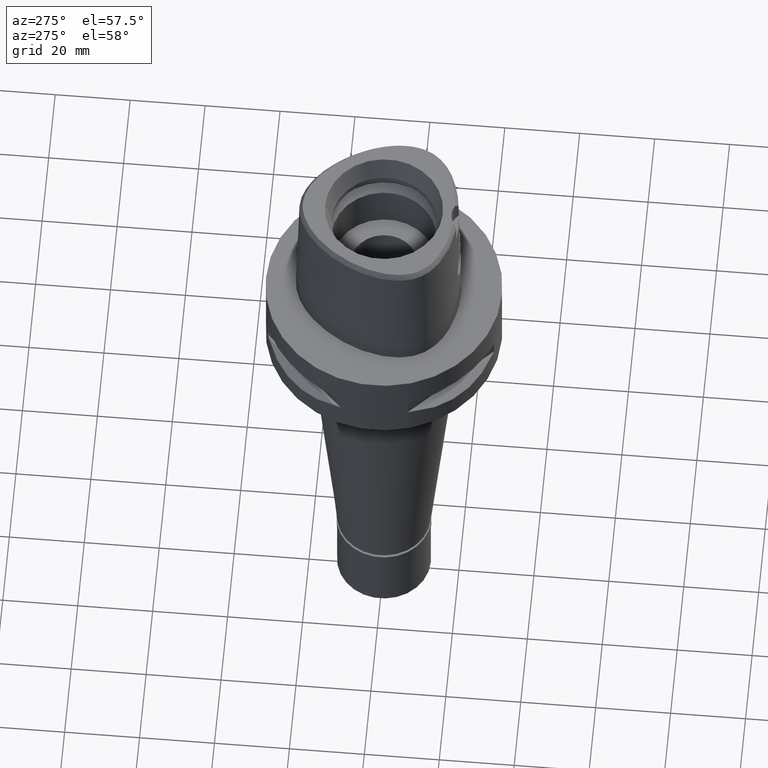
[diagram: clean part render]
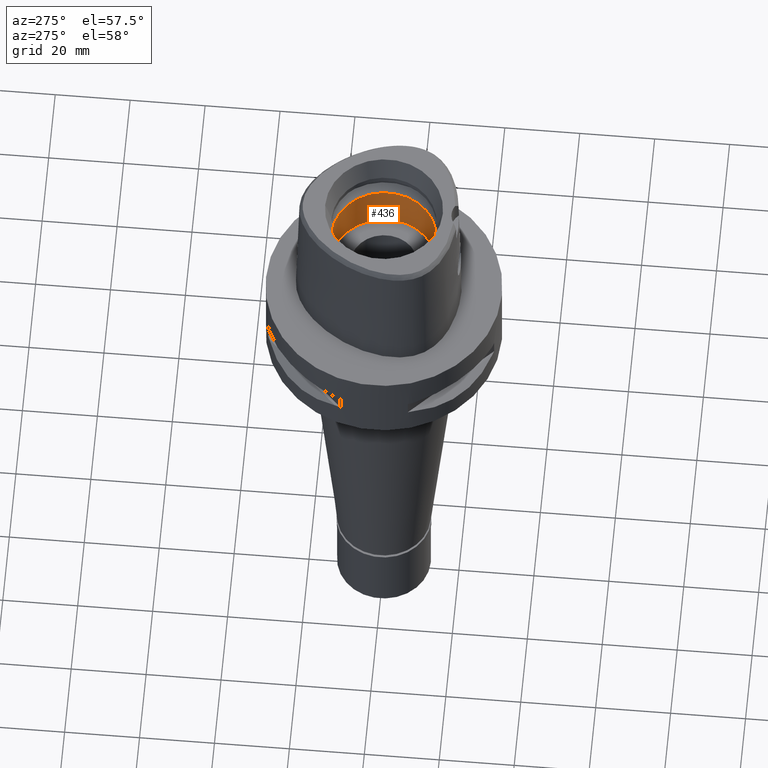
[diagram: same view with one face highlighted and labeled with its STEP entity id]
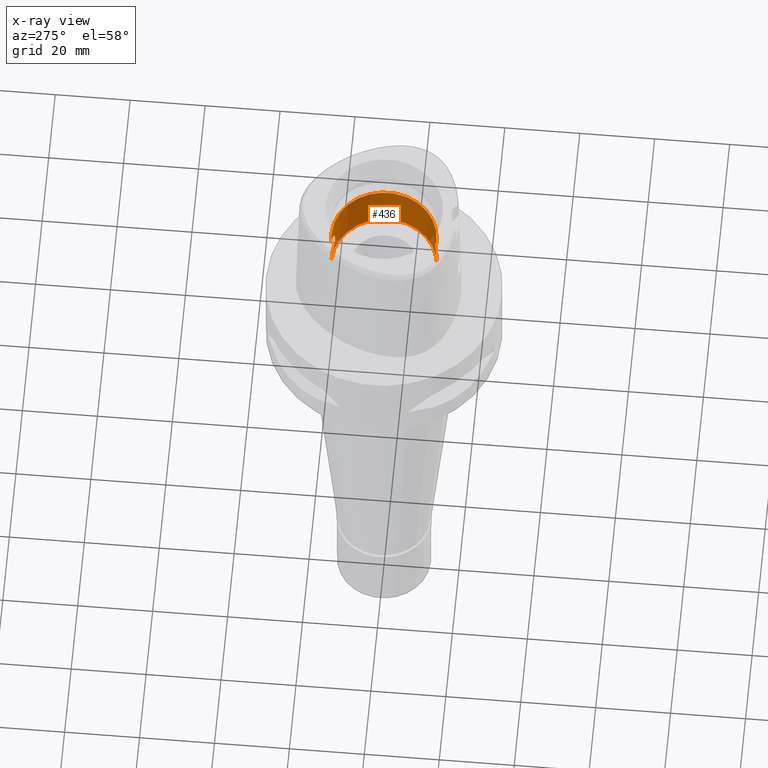
[diagram: x-ray of the same camera — body ghosted, the highlighted face saturated]
A machine part, auxiliary view. The second image highlights one B-rep face of the part: STEP entity #436.
The next image is the same camera in x-ray: the body ghosted, the highlighted face saturated — about 4% of this face is hidden behind the body in this view.
In plain terms, the highlighted cylindrical surface (partial cylindrical patch) has radius 14 mm, axis along (0, 0, -1).
Its self-contained STEP definition (entity closure, byte-faithful):
#20 = CARTESIAN_POINT ( 'NONE',  ( 2.322867096538177023, 13.80594945631067816, 18.81782271138472495 ) ) ;
#22 = CARTESIAN_POINT ( 'NONE',  ( 4.050104837866462582, 13.40137507185015586, 15.25494482426987020 ) ) ;
#49 = CARTESIAN_POINT ( 'NONE',  ( 2.619673022588239863, 13.75271276002085052, 12.41039726434475376 ) ) ;
#73 = CARTESIAN_POINT ( 'NONE',  ( 3.737887346439032754, -13.49190726130635909, 17.05908841074957039 ) ) ;
#75 = CARTESIAN_POINT ( 'NONE',  ( 3.092390699437096213, 13.65467114194158071, 12.88130927557538463 ) ) ;
#95 = CARTESIAN_POINT ( 'NONE',  ( 2.230287417959641694, -13.82119696819911958, 18.88058087293834930 ) ) ;
#98 = CARTESIAN_POINT ( 'NONE',  ( 3.760688074396015157, 13.48555087701915056, 17.00326317844047708 ) ) ;
#130 = B_SPLINE_CURVE_WITH_KNOTS ( 'NONE', 3,
 ( #1639, #3958, #1234, #825, #1995, #1260, #4707, #4759, #3175, #2770, #2793, #1539, #459, #1208, #849, #3932, #4349, #2404, #5067, #1970, #751, #1562, #3555, #3122, #1610, #49, #1585, #2720, #4736, #3584, #2020, #4680, #75, #3479, #4252, #2304, #3860, #356, #2745, #774, #1184, #1920, #3099, #4660, #1160, #4276, #2330, #3887, #382, #4299, #800, #2354, #3911, #410, #3531, #22, #1662, #2430, #489, #2819, #3986, #2047, #4858, #3609, #98, #4374, #876, #3226, #4927, #4157, #2303, #3369, #3859, #1042, #5017, #656, #2211, #1512, #3771, #4540, #268, #3886, #2600, #2182, #355, #3070, #1889, #3744, #4679, #1422, #4251, #20, #4659, #409, #1584, #3452, #750, #4298, #1919, #1968, #2329, #4628, #626, #3096, #1131, #2696, #1183, #1945, #243 ),
 .UNSPECIFIED., .F., .F.,
 ( 4, 2, 2, 1, 1, 2, 2, 2, 2, 1, 1, 1, 2, 2, 2, 2, 1, 2, 2, 2, 2, 1, 1, 1, 2, 2, 2, 2, 1, 1, 2, 2, 2, 2, 2, 2, 1, 1, 1, 2, 2, 2, 2, 1, 1, 1, 2, 2, 2, 2, 2, 2, 2, 2, 1, 1, 1, 2, 2, 2, 2, 1, 2, 2, 4 ),
 ( 0.0000000000000000000, 0.06250000000002796374, 0.09375000000004200806, 0.1093750000000490857, 0.1171875000000525829, 0.1210937500000543177, 0.1250000000000560385, 0.1562500000000701383, 0.1718750000000773548, 0.1796875000000809630, 0.1835937500000826839, 0.1855468750000834610, 0.1865234375000837386, 0.1875000000000840161, 0.2187500000000996425, 0.2343750000001074418, 0.2421875000001113554, 0.2460937500001133815, 0.2500000000001154077, 0.2812500000001315059, 0.2968750000001393885, 0.3046875000001431633, 0.3085937500001449951, 0.3105468750001457168, 0.3115234375001458278, 0.3125000000001459388, 0.3437500000001469380, 0.3593750000001472156, 0.3671875000001475486, 0.3710937500001474931, 0.3730468750001477152, 0.3750000000001478817, 0.4375000000001576517, 0.5000000000001674216, 0.5625000000001771916, 0.5937500000001820766, 0.6093750000001841860, 0.6171875000001851852, 0.6210937500001852962, 0.6230468750001854072, 0.6250000000001855183, 0.6562500000001864064, 0.6718750000001868505, 0.6796875000001872946, 0.6835937500001872946, 0.6855468750001872946, 0.6865234375001869616, 0.6875000000001866285, 0.7187500000001761924, 0.7343750000001709743, 0.7421875000001680878, 0.7500000000001652012, 0.7812500000001552092, 0.7968750000001503242, 0.8046875000001475486, 0.8085937500001462164, 0.8105468750001455502, 0.8115234375001447731, 0.8125000000001441069, 0.8437500000001201261, 0.8593750000001081357, 0.8671875000001020295, 0.8710937500000988098, 0.8750000000000954792, 1.000000000000000000 ),
 .UNSPECIFIED. ) ;
#149 = CARTESIAN_POINT ( 'NONE',  ( 3.681917144197214498, -13.50730066061284873, 17.18730806969945135 ) ) ;
#167 = CARTESIAN_POINT ( 'NONE',  ( 0.0000000000000000000, 0.0000000000000000000, 24.19999999999999929 ) ) ;
#172 = CARTESIAN_POINT ( 'NONE',  ( 3.750535583141483720, -13.48837563529048467, 13.97158931176262264 ) ) ;
#200 = CARTESIAN_POINT ( 'NONE',  ( 3.381275431635352380, -13.58552310374970595, 13.27076317276037720 ) ) ;
#227 = CARTESIAN_POINT ( 'NONE',  ( 1.773869829220215522, -13.88717198021215360, 11.85856959828370982 ) ) ;
#236 = DIRECTION ( 'NONE',  ( 0.0000000000000000000, 0.0000000000000000000, 1.000000000000000000 ) ) ;
#243 = CARTESIAN_POINT ( 'NONE',  ( 0.0000000000000000000, 14.00000000000000000, 19.55000000000000071 ) ) ;
#256 = EDGE_CURVE ( 'NONE', #3387, #3117, #3223, .T. ) ;
#268 = CARTESIAN_POINT ( 'NONE',  ( 3.144628171822032137, 13.64250443858482598, 18.05308396219102818 ) ) ;
#291 = CARTESIAN_POINT ( 'NONE',  ( 0.0000000000000000000, 14.00000000000000000, 11.00000000000000000 ) ) ;
#331 = CARTESIAN_POINT ( 'NONE',  ( 0.0000000000000000000, -14.00000000000000000, 24.19999999999999929 ) ) ;
#355 = CARTESIAN_POINT ( 'NONE',  ( 2.935444872016017115, 13.68884853182273176, 18.29060286049227102 ) ) ;
#356 = CARTESIAN_POINT ( 'NONE',  ( 3.344202712455531135, 13.59470072211582625, 13.21548413973970248 ) ) ;
#381 = CARTESIAN_POINT ( 'NONE',  ( 0.0000000000000000000, -14.00000000000000000, 11.00000000000000000 ) ) ;
#382 = CARTESIAN_POINT ( 'NONE',  ( 3.722985834057065180, 13.49603060517735820, 13.90554383507138780 ) ) ;
#409 = CARTESIAN_POINT ( 'NONE',  ( 2.268763823219308584, 13.81494635577724672, 18.85488801677172432 ) ) ;
#410 = CARTESIAN_POINT ( 'NONE',  ( 3.927462924607744377, 13.43840419036686562, 14.47652859058932151 ) ) ;
#429 = CARTESIAN_POINT ( 'NONE',  ( 2.705656092646467226, -13.73601936352752340, 18.51386516677751359 ) ) ;
#436 = ADVANCED_FACE ( 'NONE', ( #4448 ), #1883, .F. ) ;
#457 = CARTESIAN_POINT ( 'NONE',  ( 2.564513564677239454, -13.76306012765056863, 18.63532267610442972 ) ) ;
#459 = CARTESIAN_POINT ( 'NONE',  ( 1.758911448705636316, 13.88947925417483908, 11.84948192330543471 ) ) ;
#486 = CARTESIAN_POINT ( 'NONE',  ( 0.5031329879058820120, -13.99299628181930721, 19.52713608391256628 ) ) ;
#489 = CARTESIAN_POINT ( 'NONE',  ( 3.953315574837680035, 13.43069190713384131, 16.38937041762279989 ) ) ;
#511 = CARTESIAN_POINT ( 'NONE',  ( 2.206604282614726298, -13.82500263684417341, 18.89610616580772273 ) ) ;
#512 = CARTESIAN_POINT ( 'NONE',  ( 0.0000000000000000000, 14.00000000000000000, 11.00000000000000000 ) ) ;
#538 = CARTESIAN_POINT ( 'NONE',  ( 3.253150413770078409, -13.61695205281290200, 17.91296083935737826 ) ) ;
#563 = CARTESIAN_POINT ( 'NONE',  ( 3.020680690464510931, -13.67035562325839493, 12.80193796149488428 ) ) ;
#589 = CARTESIAN_POINT ( 'NONE',  ( 3.922079205947585745, -13.43983130147406690, 14.48117699423214688 ) ) ;
#613 = CARTESIAN_POINT ( 'NONE',  ( 3.864698997106321698, -13.45627842727308376, 14.28708901172944046 ) ) ;
#626 = CARTESIAN_POINT ( 'NONE',  ( 1.643112089915769847, 13.90317243032500372, 19.20194634167605940 ) ) ;
#656 = CARTESIAN_POINT ( 'NONE',  ( 3.386213530933807281, 13.58429339872313513, 17.72172867397880580 ) ) ;
#669 = CARTESIAN_POINT ( 'NONE',  ( 2.632435958151018163, -13.75053331397524126, 12.41927859746139440 ) ) ;
#724 = CARTESIAN_POINT ( 'NONE',  ( 0.0000000000000000000, -14.00000000000000000, 11.00000000000000000 ) ) ;
#726 = CARTESIAN_POINT ( 'NONE',  ( 0.0000000000000000000, 14.00000000000000000, 19.55000000000000071 ) ) ;
#750 = CARTESIAN_POINT ( 'NONE',  ( 2.255317399662373212, 13.81714987027322117, 18.86393579140843002 ) ) ;
#751 = CARTESIAN_POINT ( 'NONE',  ( 2.225288147335050759, 13.82200341650345088, 12.11612460656476919 ) ) ;
#773 = LINE ( 'NONE', #381, #3350 ) ;
#774 = CARTESIAN_POINT ( 'NONE',  ( 3.359020109953346100, 13.59103542220014127, 13.23737089544341572 ) ) ;
#800 = CARTESIAN_POINT ( 'NONE',  ( 3.737862436380069209, 13.49191471466330761, 13.94085186771693863 ) ) ;
#817 = ORIENTED_EDGE ( 'NONE', *, *, #2058, .T. ) ;
#823 = CARTESIAN_POINT ( 'NONE',  ( 3.723011875672144644, -13.49602288719113297, 17.09439534801112970 ) ) ;
#825 = CARTESIAN_POINT ( 'NONE',  ( 0.8886602406399118914, 13.97198482965736765, 11.54653314444634127 ) ) ;
#844 = CARTESIAN_POINT ( 'NONE',  ( 2.180430719042663945, -13.82916524275329806, 18.91303019141079744 ) ) ;
#849 = CARTESIAN_POINT ( 'NONE',  ( 1.994196793542153179, 13.85732250604735150, 11.97431708283842333 ) ) ;
#873 = CARTESIAN_POINT ( 'NONE',  ( 3.740374405820741543, -13.49121797331917527, 17.05311813184873415 ) ) ;
#876 = CARTESIAN_POINT ( 'NONE',  ( 3.750524584720605237, 13.48837842770623574, 17.02843767659302543 ) ) ;
#902 = CARTESIAN_POINT ( 'NONE',  ( 1.935032715135688530, -13.86568800702951521, 19.05844582712813562 ) ) ;
#925 = CARTESIAN_POINT ( 'NONE',  ( 1.994209348676432958, -13.85732070570753471, 19.02567586479972661 ) ) ;
#975 = ORIENTED_EDGE ( 'NONE', *, *, #3844, .F. ) ;
#981 = CARTESIAN_POINT ( 'NONE',  ( 3.953314660153793181, -13.43069195178042641, 14.61062672908327542 ) ) ;
#1003 = CARTESIAN_POINT ( 'NONE',  ( 2.425356293155605414, -13.78827839657718890, 12.25602180728359158 ) ) ;
#1030 = CARTESIAN_POINT ( 'NONE',  ( 1.600078814865037113, -13.90814512833036964, 11.77945038585449922 ) ) ;
#1042 = CARTESIAN_POINT ( 'NONE',  ( 3.410721872006920119, 13.57817107780544674, 17.68404181477652770 ) ) ;
#1054 = CARTESIAN_POINT ( 'NONE',  ( 2.286401869744580484, -13.81203602590156621, 12.15707754361575255 ) ) ;
#1076 = DIRECTION ( 'NONE',  ( 0.0000000000000000000, -1.000000000000000000, 0.0000000000000000000 ) ) ;
#1106 = LINE ( 'NONE', #726, #4403 ) ;
#1131 = CARTESIAN_POINT ( 'NONE',  ( 1.571457089749292102, 13.91140721976953110, 19.23272879698367532 ) ) ;
#1136 = CARTESIAN_POINT ( 'NONE',  ( 1.643402327022561948, -13.90359116574125053, 19.20357680876592710 ) ) ;
#1160 = CARTESIAN_POINT ( 'NONE',  ( 3.612092316939220282, 13.52616139821540564, 13.66702611669179213 ) ) ;
#1183 = CARTESIAN_POINT ( 'NONE',  ( 1.029184106435327983, 13.97152837429127992, 19.45627297034519998 ) ) ;
#1184 = CARTESIAN_POINT ( 'NONE',  ( 3.361880068192555804, 13.59032751574506648, 13.24162249148927017 ) ) ;
#1208 = CARTESIAN_POINT ( 'NONE',  ( 1.935022422310702206, 13.86568947269442020, 11.94154862990651722 ) ) ;
#1232 = CARTESIAN_POINT ( 'NONE',  ( 1.017639181789193437, -13.96323047955135799, 19.42236212087125935 ) ) ;
#1234 = CARTESIAN_POINT ( 'NONE',  ( 0.5031375785590220806, 13.99299620741434325, 11.47286437004364679 ) ) ;
#1256 = CARTESIAN_POINT ( 'NONE',  ( 3.300146341830308749, -13.60553517926693168, 17.84781835524496785 ) ) ;
#1260 = CARTESIAN_POINT ( 'NONE',  ( 1.210739730851152052, 13.94747155560756191, 11.63462642380244993 ) ) ;
#1282 = CARTESIAN_POINT ( 'NONE',  ( 2.824278146734877204, -13.71216806335186611, 18.40282419414445059 ) ) ;
#1309 = CARTESIAN_POINT ( 'NONE',  ( 3.641267411179716973, -13.51833533351320860, 17.27419309983596563 ) ) ;
#1359 = CARTESIAN_POINT ( 'NONE',  ( 3.649300474006761608, -13.51628050930860425, 13.73856294209829443 ) ) ;
#1386 = ORIENTED_EDGE ( 'NONE', *, *, #3999, .T. ) ;
#1387 = CARTESIAN_POINT ( 'NONE',  ( 3.770305607771647693, -13.48287202863806478, 14.02087226161732580 ) ) ;
#1410 = CARTESIAN_POINT ( 'NONE',  ( 2.268773195248865004, -13.81494468101088557, 12.14511832100865263 ) ) ;
#1422 = CARTESIAN_POINT ( 'NONE',  ( 2.425345328720491356, 13.78828047725936656, 18.74398637552772584 ) ) ;
#1455 = DIRECTION ( 'NONE',  ( 0.0000000000000000000, 0.0000000000000000000, -1.000000000000000000 ) ) ;
#1512 = CARTESIAN_POINT ( 'NONE',  ( 3.377713256201304581, 13.58640893255201476, 17.73462749918550330 ) ) ;
#1539 = CARTESIAN_POINT ( 'NONE',  ( 1.643405570641728985, 13.90359095054735050, 11.79642487334085565 ) ) ;
#1562 = CARTESIAN_POINT ( 'NONE',  ( 2.230267356657809508, 13.82120012601140502, 12.11940589182981221 ) ) ;
#1584 = CARTESIAN_POINT ( 'NONE',  ( 2.261340657284464317, 13.81616386825135123, 18.85988797632192870 ) ) ;
#1585 = CARTESIAN_POINT ( 'NONE',  ( 2.705631081591456599, 13.73602433008912982, 12.48611241040952713 ) ) ;
#1606 = CARTESIAN_POINT ( 'NONE',  ( 1.499090398657561440, -13.91942988264788639, 19.26238249073475473 ) ) ;
#1610 = CARTESIAN_POINT ( 'NONE',  ( 2.564495781464740443, 13.76306347787880036, 12.36466282403251604 ) ) ;
#1637 = CARTESIAN_POINT ( 'NONE',  ( 2.987578035406218468, -13.67819521537284366, 18.24080360137144297 ) ) ;
#1639 = CARTESIAN_POINT ( 'NONE',  ( 0.0000000000000000000, 14.00000000000000000, 11.44999999999999929 ) ) ;
#1658 = CARTESIAN_POINT ( 'NONE',  ( 2.794219043447354611, -13.71831254960298097, 18.43176999259334181 ) ) ;
#1662 = CARTESIAN_POINT ( 'NONE',  ( 4.049894426080578924, 13.40142315477315194, 15.74850829857959944 ) ) ;
#1686 = CARTESIAN_POINT ( 'NONE',  ( 2.838009928929325021, -13.70933862723026486, 18.38942009771758990 ) ) ;
#1711 = CARTESIAN_POINT ( 'NONE',  ( 0.0000000000000000000, -14.00000000000000000, 11.44999999999999929 ) ) ;
#1733 = CARTESIAN_POINT ( 'NONE',  ( 1.832691376668475369, -13.87954557477466722, 11.88776574650866991 ) ) ;
#1762 = CARTESIAN_POINT ( 'NONE',  ( 3.377736576013190994, -13.58640317541479092, 13.26540774977146775 ) ) ;
#1789 = CARTESIAN_POINT ( 'NONE',  ( 2.256430671639759300, -13.81696743697228946, 12.13681261213153029 ) ) ;
#1883 = CYLINDRICAL_SURFACE ( 'NONE', #4307, 14.00000000000000000 ) ;
#1889 = CARTESIAN_POINT ( 'NONE',  ( 2.749412119689650158, 13.72794699191206114, 18.47891641111060324 ) ) ;
#1919 = CARTESIAN_POINT ( 'NONE',  ( 2.010501717871479688, 13.85534156540951223, 19.01828921525475735 ) ) ;
#1920 = CARTESIAN_POINT ( 'NONE',  ( 3.362135645922113447, 13.59026426608047622, 13.24199978629571994 ) ) ;
#1945 = CARTESIAN_POINT ( 'NONE',  ( 0.4996109249560286014, 13.99999999999999645, 19.54999999999999716 ) ) ;
#1954 = VERTEX_POINT ( 'NONE', #3069 ) ;
#1968 = CARTESIAN_POINT ( 'NONE',  ( 1.832682128999251647, 13.87954668814696291, 19.11223895305699472 ) ) ;
#1970 = CARTESIAN_POINT ( 'NONE',  ( 2.217806395127109198, 13.82320634839995321, 12.11121632282324612 ) ) ;
#1993 = CARTESIAN_POINT ( 'NONE',  ( 3.321853759922872129, -13.60021613420336095, 17.81705094764194186 ) ) ;
#1995 = CARTESIAN_POINT ( 'NONE',  ( 1.017647129617076596, 13.96323008892529138, 11.57763991488630317 ) ) ;
#2020 = CARTESIAN_POINT ( 'NONE',  ( 2.837973772829399444, 13.70934612523348584, 12.61054438057084148 ) ) ;
#2043 = CARTESIAN_POINT ( 'NONE',  ( 2.217825895405038938, -13.82320329824289473, 18.88877091521866092 ) ) ;
#2047 = CARTESIAN_POINT ( 'NONE',  ( 3.833372613786533378, 13.46518805228022408, 16.80994934950047082 ) ) ;
#2058 = EDGE_CURVE ( 'NONE', #1954, #3803, #3021, .T. ) ;
#2066 = CARTESIAN_POINT ( 'NONE',  ( 1.516899316939854581, -13.91750090884298352, 19.25522928305483816 ) ) ;
#2079 = VERTEX_POINT ( 'NONE', #724 ) ;
#2091 = CARTESIAN_POINT ( 'NONE',  ( 3.612125191162198767, -13.52615234759679552, 17.33290907843088036 ) ) ;
#2116 = CARTESIAN_POINT ( 'NONE',  ( 1.029195579474304623, -13.97152789805618411, 11.54372935801516498 ) ) ;
#2140 = CARTESIAN_POINT ( 'NONE',  ( 3.524216153033390420, -13.54926445638730925, 13.50320070291675734 ) ) ;
#2168 = CARTESIAN_POINT ( 'NONE',  ( 2.255326728032801320, -13.81714821576336760, 12.13607046265439138 ) ) ;
#2177 = VERTEX_POINT ( 'NONE', #2694 ) ;
#2182 = CARTESIAN_POINT ( 'NONE',  ( 2.993275682249345149, 13.67636296181817990, 18.22847972535759808 ) ) ;
#2195 = ORIENTED_EDGE ( 'NONE', *, *, #3785, .F. ) ;
#2211 = CARTESIAN_POINT ( 'NONE',  ( 3.381252386281981437, 13.58552879951720449, 17.72927178202238352 ) ) ;
#2303 = CARTESIAN_POINT ( 'NONE',  ( 3.524199374553697250, 13.54926875960418542, 17.49682897105229884 ) ) ;
#2304 = CARTESIAN_POINT ( 'NONE',  ( 3.300115214101455141, 13.60554254237637295, 13.15213791996509585 ) ) ;
#2316 = CARTESIAN_POINT ( 'NONE',  ( 0.0000000000000000000, -14.00000000000000000, 11.44999999999999929 ) ) ;
#2329 = CARTESIAN_POINT ( 'NONE',  ( 1.773859858346373830, 13.88717310935093607, 19.14143527713201465 ) ) ;
#2330 = CARTESIAN_POINT ( 'NONE',  ( 3.681888265734950316, 13.50730898610041386, 13.81262890089362294 ) ) ;
#2354 = CARTESIAN_POINT ( 'NONE',  ( 3.740349717817780917, 13.49122537259350985, 13.94682241178655246 ) ) ;
#2376 = CARTESIAN_POINT ( 'NONE',  ( 1.210730804332083466, -13.94747211364479789, 19.36537636554719910 ) ) ;
#2401 = CARTESIAN_POINT ( 'NONE',  ( 4.050109039351203144, -13.40137442886974917, 15.74496307463717493 ) ) ;
#2403 = DIRECTION ( 'NONE',  ( 0.0000000000000000000, 0.0000000000000000000, -1.000000000000000000 ) ) ;
#2404 = CARTESIAN_POINT ( 'NONE',  ( 2.180412222388873555, 13.82916808513208906, 12.08695799700654483 ) ) ;
#2426 = CARTESIAN_POINT ( 'NONE',  ( 4.027223470520464588, -13.40876944169245810, 16.00391502730491311 ) ) ;
#2430 = CARTESIAN_POINT ( 'NONE',  ( 4.027172463334768970, 13.40874935841138615, 16.00310739066830834 ) ) ;
#2457 = CARTESIAN_POINT ( 'NONE',  ( 2.619693227442611239, -13.75270887469176984, 18.58958572220459970 ) ) ;
#2479 = CARTESIAN_POINT ( 'NONE',  ( 2.312907190661671830, -13.80784060208822339, 18.82598581439722807 ) ) ;
#2491 = ORIENTED_EDGE ( 'NONE', *, *, #2504, .T. ) ;
#2504 = EDGE_CURVE ( 'NONE', #3387, #2079, #2937, .T. ) ;
#2506 = CARTESIAN_POINT ( 'NONE',  ( 3.760698389519647300, -13.48554827042933013, 13.99676262889636646 ) ) ;
#2533 = CARTESIAN_POINT ( 'NONE',  ( 3.410743496005227193, -13.57816568317720929, 13.31599196305548993 ) ) ;
#2534 = DIRECTION ( 'NONE',  ( 0.0000000000000000000, 0.0000000000000000000, 1.000000000000000000 ) ) ;
#2557 = CARTESIAN_POINT ( 'NONE',  ( 3.267860857267358643, -13.61367823512106767, 13.10390269945182773 ) ) ;
#2583 = CARTESIAN_POINT ( 'NONE',  ( 0.0000000000000000000, 0.0000000000000000000, 39.89999999999999858 ) ) ;
#2585 = CARTESIAN_POINT ( 'NONE',  ( 0.4996170308321704057, -14.00000000000000533, 11.45000000000000107 ) ) ;
#2600 = CARTESIAN_POINT ( 'NONE',  ( 3.020660455888391382, 13.67036005593459080, 18.19808468490817432 ) ) ;
#2615 = CARTESIAN_POINT ( 'NONE',  ( 2.010509632126467050, -13.85534039797923711, 11.98171533897966334 ) ) ;
#2694 = CARTESIAN_POINT ( 'NONE',  ( 0.0000000000000000000, 14.00000000000000000, 19.55000000000000071 ) ) ;
#2696 = CARTESIAN_POINT ( 'NONE',  ( 1.559041427490637011, 13.91280564626705463, 19.23793945981470443 ) ) ;
#2700 = CARTESIAN_POINT ( 'NONE',  ( 3.359058616896186233, -13.59102609449553611, 17.76257193801029999 ) ) ;
#2720 = CARTESIAN_POINT ( 'NONE',  ( 2.749405349808391463, 13.72738952683707581, 12.52574890507688998 ) ) ;
#2745 = CARTESIAN_POINT ( 'NONE',  ( 3.354680329649776471, 13.59210945294472062, 13.23093247323635957 ) ) ;
#2770 = CARTESIAN_POINT ( 'NONE',  ( 1.499100513058770012, 13.91942902670014170, 11.73762153891944848 ) ) ;
#2791 = CARTESIAN_POINT ( 'NONE',  ( 3.850575600135912158, -13.46063562734230601, 16.78609245255456628 ) ) ;
#2793 = CARTESIAN_POINT ( 'NONE',  ( 1.516910412627848093, 13.91749993127518792, 11.74477520273348219 ) ) ;
#2815 = CARTESIAN_POINT ( 'NONE',  ( 3.361919059606512050, -13.59031805818508332, 17.75831946435189579 ) ) ;
#2819 = CARTESIAN_POINT ( 'NONE',  ( 3.922078288989684580, 13.43983163058550900, 16.51882742547931926 ) ) ;
#2841 = CARTESIAN_POINT ( 'NONE',  ( 3.354718119046004254, -13.59210031745213776, 17.76901166033502477 ) ) ;
#2868 = CARTESIAN_POINT ( 'NONE',  ( 1.419263858817291446, -13.92782887280988646, 19.29344666032362099 ) ) ;
#2870 = CARTESIAN_POINT ( 'NONE',  ( 0.0000000000000000000, 0.0000000000000000000, 11.00000000000000000 ) ) ;
#2889 = CARTESIAN_POINT ( 'NONE',  ( 3.393648836096402555, -13.58244002077571011, 13.28961777952453183 ) ) ;
#2914 = CARTESIAN_POINT ( 'NONE',  ( 3.557104273013081741, -13.54067981900847961, 13.56250217921517986 ) ) ;
#2937 = CIRCLE ( 'NONE', #3093, 14.00000000000000000 ) ;
#2941 = CARTESIAN_POINT ( 'NONE',  ( 3.754236443715380567, -13.48734669256756113, 13.98069631228726095 ) ) ;
#2963 = CARTESIAN_POINT ( 'NONE',  ( 1.571471244912584497, -13.91140584751454234, 11.76727716385062372 ) ) ;
#3021 = LINE ( 'NONE', #4224, #3345 ) ;
#3054 = EDGE_LOOP ( 'NONE', ( #3881, #2491, #3777, #3547, #817, #1386, #2195, #975 ) ) ;
#3069 = CARTESIAN_POINT ( 'NONE',  ( 0.0000000000000000000, -14.00000000000000000, 19.55000000000000071 ) ) ;
#3070 = CARTESIAN_POINT ( 'NONE',  ( 2.903809840621022431, 13.69558042600117176, 18.32352754259278171 ) ) ;
#3075 = CARTESIAN_POINT ( 'NONE',  ( 3.701476196223675075, -13.50195603621892104, 17.14416223935477035 ) ) ;
#3093 = AXIS2_PLACEMENT_3D ( 'NONE', #2870, #2403, #3173 ) ;
#3096 = CARTESIAN_POINT ( 'NONE',  ( 1.600065394708062971, 13.90814645046986442, 19.22055538722543488 ) ) ;
#3099 = CARTESIAN_POINT ( 'NONE',  ( 3.446439376921886399, 13.56939223703913022, 13.36783492901220072 ) ) ;
#3116 = VERTEX_POINT ( 'NONE', #2316 ) ;
#3117 = VERTEX_POINT ( 'NONE', #3875 ) ;
#3122 = CARTESIAN_POINT ( 'NONE',  ( 2.407026742850356893, 13.79179092516307925, 12.24014823345906855 ) ) ;
#3156 = VERTEX_POINT ( 'NONE', #4311 ) ;
#3172 = CARTESIAN_POINT ( 'NONE',  ( 3.731972597725385477, -13.49354487605745589, 17.07319389047551539 ) ) ;
#3173 = DIRECTION ( 'NONE',  ( 0.0000000000000000000, 1.000000000000000000, 0.0000000000000000000 ) ) ;
#3175 = CARTESIAN_POINT ( 'NONE',  ( 1.467188112032900227, 13.92282148873382219, 11.72506250693269791 ) ) ;
#3223 = LINE ( 'NONE', #512, #3972 ) ;
#3226 = CARTESIAN_POINT ( 'NONE',  ( 3.702127444471702056, 13.50182339612493720, 17.14656876306907307 ) ) ;
#3249 = CARTESIAN_POINT ( 'NONE',  ( 1.307177758755648345, -13.93893633211207828, 19.33430355925596444 ) ) ;
#3291 = DIRECTION ( 'NONE',  ( 0.0000000000000000000, 0.0000000000000000000, 1.000000000000000000 ) ) ;
#3300 = CARTESIAN_POINT ( 'NONE',  ( 3.792123985366229633, -13.47677720437101279, 14.07719458706809412 ) ) ;
#3328 = CARTESIAN_POINT ( 'NONE',  ( 3.144649004617911192, -13.64249969677155683, 12.94694166698170257 ) ) ;
#3345 = VECTOR ( 'NONE', #4145, 1000.000000000000000 ) ;
#3350 = VECTOR ( 'NONE', #3505, 1000.000000000000000 ) ;
#3356 = CARTESIAN_POINT ( 'NONE',  ( 2.261349992690711908, -13.81616220669344131, 12.14011830678639647 ) ) ;
#3369 = CARTESIAN_POINT ( 'NONE',  ( 3.471388650748093330, 13.56282351113626916, 17.58642340579924834 ) ) ;
#3379 = CARTESIAN_POINT ( 'NONE',  ( 2.356179768473787295, -13.80026442335244496, 12.20580376806009504 ) ) ;
#3387 = VERTEX_POINT ( 'NONE', #291 ) ;
#3452 = CARTESIAN_POINT ( 'NONE',  ( 2.256421358940177591, 13.81696909000757323, 18.86319363591200116 ) ) ;
#3479 = CARTESIAN_POINT ( 'NONE',  ( 3.217025597028648320, 13.62560769355123647, 13.03875506194515488 ) ) ;
#3505 = DIRECTION ( 'NONE',  ( 0.0000000000000000000, 0.0000000000000000000, 1.000000000000000000 ) ) ;
#3531 = CARTESIAN_POINT ( 'NONE',  ( 4.027216825684716284, 13.40877103518742253, 14.99603235324932449 ) ) ;
#3547 = ORIENTED_EDGE ( 'NONE', *, *, #4715, .F. ) ;
#3552 = CARTESIAN_POINT ( 'NONE',  ( 3.518056051408226637, -13.55098508629760801, 17.51091968135015264 ) ) ;
#3555 = CARTESIAN_POINT ( 'NONE',  ( 2.312892875906935153, 13.80784294829982173, 12.17400404903530742 ) ) ;
#3581 = CARTESIAN_POINT ( 'NONE',  ( 3.217051634125119630, -13.62560167973527925, 17.96121095383637112 ) ) ;
#3584 = CARTESIAN_POINT ( 'NONE',  ( 2.824245245275939453, 13.71217485460608287, 12.59714380719415416 ) ) ;
#3606 = CARTESIAN_POINT ( 'NONE',  ( 2.225307842472947772, -13.82200032481087959, 18.88386244170613537 ) ) ;
#3609 = CARTESIAN_POINT ( 'NONE',  ( 3.770295828582672204, 13.48287449147562000, 16.97915267912457082 ) ) ;
#3630 = CARTESIAN_POINT ( 'NONE',  ( 2.749433056058586011, -13.72738395001388945, 18.47422555713615466 ) ) ;
#3654 = CARTESIAN_POINT ( 'NONE',  ( 0.2481241771357211301, -14.00000000000000000, 19.54999999999999716 ) ) ;
#3679 = CARTESIAN_POINT ( 'NONE',  ( 3.444134305154029185, -13.56976516762170526, 13.36865222205633330 ) ) ;
#3702 = CARTESIAN_POINT ( 'NONE',  ( 3.386236333451225544, -13.58428775399380228, 13.27830608082098607 ) ) ;
#3727 = CARTESIAN_POINT ( 'NONE',  ( 2.903830259282267345, -13.69557610160722660, 12.67649343714048804 ) ) ;
#3744 = CARTESIAN_POINT ( 'NONE',  ( 2.632421441996107614, 13.75053619267145599, 18.58073368398477854 ) ) ;
#3758 = CARTESIAN_POINT ( 'NONE',  ( 3.098515382225266901, -13.65306636109957594, 12.89080379894812900 ) ) ;
#3771 = CARTESIAN_POINT ( 'NONE',  ( 3.329833398821768764, 13.59830740158224849, 17.80689757028679665 ) ) ;
#3777 = ORIENTED_EDGE ( 'NONE', *, *, #3899, .T. ) ;
#3781 = CARTESIAN_POINT ( 'NONE',  ( 2.130881178372290297, -13.83743566613834908, 12.05283858997449542 ) ) ;
#3785 = EDGE_CURVE ( 'NONE', #2177, #3156, #1106, .T. ) ;
#3803 = VERTEX_POINT ( 'NONE', #331 ) ;
#3844 = EDGE_CURVE ( 'NONE', #3117, #2177, #130, .T. ) ;
#3859 = CARTESIAN_POINT ( 'NONE',  ( 3.444114222125594704, 13.56977022796854726, 17.63138026165065142 ) ) ;
#3860 = CARTESIAN_POINT ( 'NONE',  ( 3.321820542263259846, 13.60022405019305403, 13.18290148945368401 ) ) ;
#3875 = CARTESIAN_POINT ( 'NONE',  ( 0.0000000000000000000, 14.00000000000000000, 11.44999999999999929 ) ) ;
#3881 = ORIENTED_EDGE ( 'NONE', *, *, #256, .F. ) ;
#3886 = CARTESIAN_POINT ( 'NONE',  ( 3.098494804711187101, 13.65307097563988314, 18.10922060623350305 ) ) ;
#3887 = CARTESIAN_POINT ( 'NONE',  ( 3.701448599088179581, 13.50196410078681808, 13.85577559937554604 ) ) ;
#3899 = EDGE_CURVE ( 'NONE', #2079, #3116, #773, .T. ) ;
#3911 = CARTESIAN_POINT ( 'NONE',  ( 3.850558670336118539, 13.46064117905781643, 14.21385490515232419 ) ) ;
#3929 = CARTESIAN_POINT ( 'NONE',  ( 1.758914213597541298, -13.88947879502940630, 19.15051695547473898 ) ) ;
#3932 = CARTESIAN_POINT ( 'NONE',  ( 2.083402352831571935, 13.84411649684632017, 12.02679904739869876 ) ) ;
#3958 = CARTESIAN_POINT ( 'NONE',  ( 0.2481266265058150455, 14.00000000000000000, 11.44999999999999929 ) ) ;
#3972 = VECTOR ( 'NONE', #2534, 1000.000000000000000 ) ;
#3982 = CARTESIAN_POINT ( 'NONE',  ( 3.344238891824591331, -13.59469201712063224, 17.78446291341362695 ) ) ;
#3986 = CARTESIAN_POINT ( 'NONE',  ( 3.864694685454566958, 13.45627952657928006, 16.71292491325205276 ) ) ;
#3999 = EDGE_CURVE ( 'NONE', #3803, #3156, #4821, .T. ) ;
#4007 = CARTESIAN_POINT ( 'NONE',  ( 3.362175151425315534, -13.59025468045932072, 17.75794138953405366 ) ) ;
#4032 = CARTESIAN_POINT ( 'NONE',  ( 1.467178111786428429, -13.92282230864165982, 19.27494137944280794 ) ) ;
#4061 = CARTESIAN_POINT ( 'NONE',  ( 3.833378784130643702, -13.46518651548722900, 14.19006897790624677 ) ) ;
#4088 = CARTESIAN_POINT ( 'NONE',  ( 3.702139074867384139, -13.50182043942416854, 13.85345734750486990 ) ) ;
#4113 = CARTESIAN_POINT ( 'NONE',  ( 2.322876848913191683, -13.80594766828286524, 12.18218411285366010 ) ) ;
#4140 = CARTESIAN_POINT ( 'NONE',  ( 3.329855790059505605, -13.59830196913217470, 13.19313464255487389 ) ) ;
#4145 = DIRECTION ( 'NONE',  ( 0.0000000000000000000, 0.0000000000000000000, 1.000000000000000000 ) ) ;
#4157 = CARTESIAN_POINT ( 'NONE',  ( 3.557088666496132312, 13.54068383475939719, 17.43752651015343602 ) ) ;
#4173 = CARTESIAN_POINT ( 'NONE',  ( 2.935464796525304010, -13.68884427347286881, 12.70941809102784426 ) ) ;
#4224 = CARTESIAN_POINT ( 'NONE',  ( 0.0000000000000000000, -14.00000000000000000, 19.55000000000000071 ) ) ;
#4251 = CARTESIAN_POINT ( 'NONE',  ( 2.356169660972866620, 13.80026629987498232, 18.79420345770414613 ) ) ;
#4252 = CARTESIAN_POINT ( 'NONE',  ( 3.253122839228511864, 13.61695847470872245, 13.08700209578858953 ) ) ;
#4276 = CARTESIAN_POINT ( 'NONE',  ( 3.641236061920076317, 13.51834413263972756, 13.72574250707584476 ) ) ;
#4298 = CARTESIAN_POINT ( 'NONE',  ( 2.130873031707559484, 13.83743700475047866, 18.94716637657095504 ) ) ;
#4299 = CARTESIAN_POINT ( 'NONE',  ( 3.731947233717674006, 13.49355243647113056, 13.92674594027223378 ) ) ;
#4307 = AXIS2_PLACEMENT_3D ( 'NONE', #2583, #1455, #1076 ) ;
#4311 = CARTESIAN_POINT ( 'NONE',  ( 0.0000000000000000000, 14.00000000000000000, 24.19999999999999929 ) ) ;
#4346 = CARTESIAN_POINT ( 'NONE',  ( 3.927475894208720675, -13.43840014692434259, 16.52342187618989300 ) ) ;
#4349 = CARTESIAN_POINT ( 'NONE',  ( 2.128115661606785114, 13.83734960243819678, 12.05387220707678431 ) ) ;
#4372 = CARTESIAN_POINT ( 'NONE',  ( 4.049890164046381358, -13.40142381086357126, 15.25144457815123467 ) ) ;
#4374 = CARTESIAN_POINT ( 'NONE',  ( 3.754225769602181906, 13.48734939608367256, 17.01933006532954806 ) ) ;
#4398 = CARTESIAN_POINT ( 'NONE',  ( 2.083417932607754430, -13.84411419574152902, 18.97319161947384458 ) ) ;
#4403 = VECTOR ( 'NONE', #236, 1000.000000000000000 ) ;
#4410 = AXIS2_PLACEMENT_3D ( 'NONE', #167, #3291, #4441 ) ;
#4424 = CARTESIAN_POINT ( 'NONE',  ( 2.407040127156084175, -13.79178862307484899, 18.75984205953191264 ) ) ;
#4441 = DIRECTION ( 'NONE',  ( 0.0000000000000000000, -1.000000000000000000, 0.0000000000000000000 ) ) ;
#4447 = CARTESIAN_POINT ( 'NONE',  ( 1.686553841183068059, -13.89794860812690658, 11.81773595105117636 ) ) ;
#4448 = FACE_OUTER_BOUND ( 'NONE', #3054, .T. ) ;
#4474 = CARTESIAN_POINT ( 'NONE',  ( 3.471407568666792454, -13.56281871367385605, 13.41360808481812228 ) ) ;
#4499 = CARTESIAN_POINT ( 'NONE',  ( 2.474909158876553938, -13.77946166284112017, 12.29346908423364582 ) ) ;
#4523 = CARTESIAN_POINT ( 'NONE',  ( 1.559056483625745448, -13.91280418779705563, 11.76206681924257680 ) ) ;
#4540 = CARTESIAN_POINT ( 'NONE',  ( 3.267839163493140742, 13.61368337684388408, 17.89612675574468881 ) ) ;
#4552 = CARTESIAN_POINT ( 'NONE',  ( 2.749429149874023981, -13.72794355118774234, 12.52109900910284068 ) ) ;
#4628 = CARTESIAN_POINT ( 'NONE',  ( 1.686542341558419755, 13.89794981159410803, 19.18226932051135591 ) ) ;
#4633 = CARTESIAN_POINT ( 'NONE',  ( 0.8886530554434839413, -13.97198512727722708, 19.45346844018241939 ) ) ;
#4659 = CARTESIAN_POINT ( 'NONE',  ( 2.286392394422668950, 13.81203773445942673, 18.84292893639339539 ) ) ;
#4660 = CARTESIAN_POINT ( 'NONE',  ( 3.518019159162037557, 13.55099469859089290, 13.48901570177833698 ) ) ;
#4679 = CARTESIAN_POINT ( 'NONE',  ( 2.474897426778941423, 13.77946391585664188, 18.70653994157297717 ) ) ;
#4680 = CARTESIAN_POINT ( 'NONE',  ( 2.987551071126870017, 13.67820116335224512, 12.75916637495477346 ) ) ;
#4707 = CARTESIAN_POINT ( 'NONE',  ( 1.307187133395111944, 13.93893568339380096, 11.66569962606411792 ) ) ;
#4715 = EDGE_CURVE ( 'NONE', #1954, #3116, #5031, .T. ) ;
#4734 = CARTESIAN_POINT ( 'NONE',  ( 3.092415008874853211, -13.65466569417765008, 18.11866219977504144 ) ) ;
#4736 = CARTESIAN_POINT ( 'NONE',  ( 2.794188265560816120, 13.71831884115572109, 12.56820068589659023 ) ) ;
#4756 = CARTESIAN_POINT ( 'NONE',  ( 0.0000000000000000000, -14.00000000000000000, 19.55000000000000071 ) ) ;
#4759 = CARTESIAN_POINT ( 'NONE',  ( 1.419273682515728385, 13.92782810608996336, 11.70655701251833847 ) ) ;
#4781 = CARTESIAN_POINT ( 'NONE',  ( 2.128132661560468097, -13.83734705126276943, 18.94611731529635890 ) ) ;
#4808 = CARTESIAN_POINT ( 'NONE',  ( 3.446478207128052862, -13.56938250736487639, 17.63210248792501034 ) ) ;
#4821 = CIRCLE ( 'NONE', #4410, 14.00000000000000000 ) ;
#4858 = CARTESIAN_POINT ( 'NONE',  ( 3.792115437656363497, 13.47677934324679150, 16.92282825340859276 ) ) ;
#4860 = CARTESIAN_POINT ( 'NONE',  ( 4.027167981726239354, -13.40875010521662780, 14.99686531048723204 ) ) ;
#4889 = CARTESIAN_POINT ( 'NONE',  ( 2.993295809226349746, -13.67635858825579653, 12.77154234762751095 ) ) ;
#4915 = CARTESIAN_POINT ( 'NONE',  ( 1.643124464775751692, -13.90317117702391059, 11.79805916109248187 ) ) ;
#4927 = CARTESIAN_POINT ( 'NONE',  ( 3.649287754746372681, 13.51628378875485481, 17.26146357285877642 ) ) ;
#5017 = CARTESIAN_POINT ( 'NONE',  ( 3.393626394359816167, 13.58244558944035951, 17.71041667749945248 ) ) ;
#5031 = B_SPLINE_CURVE_WITH_KNOTS ( 'NONE', 3,
 ( #4756, #3654, #486, #4633, #1232, #2376, #3249, #2868, #4032, #1606, #2066, #1136, #3929, #902, #925, #4398, #4781, #844, #511, #2043, #3606, #95, #2479, #4424, #457, #2457, #429, #3630, #1658, #1282, #1686, #1637, #4734, #3581, #538, #1256, #1993, #3982, #2841, #2700, #2815, #4007, #4808, #3552, #2091, #1309, #149, #3075, #823, #3172, #73, #873, #2791, #4346, #2426, #2401, #4372, #4860, #981, #589, #613, #4061, #3300, #1387, #2506, #2941, #172, #4088, #1359, #2914, #2140, #4474, #3679, #2533, #2889, #3702, #200, #1762, #4140, #2557, #3328, #3758, #563, #4889, #4173, #3727, #4552, #669, #4499, #1003, #3379, #4113, #1054, #1410, #3356, #1789, #2168, #3781, #2615, #1733, #227, #4447, #4915, #1030, #2963, #4523, #2116, #2585, #1711 ),
 .UNSPECIFIED., .F., .F.,
 ( 4, 2, 2, 1, 1, 2, 2, 2, 2, 1, 1, 1, 2, 2, 2, 2, 1, 2, 2, 2, 2, 1, 1, 1, 2, 2, 2, 2, 1, 1, 2, 2, 2, 2, 2, 2, 1, 1, 1, 2, 2, 2, 2, 1, 1, 1, 2, 2, 2, 2, 2, 2, 2, 2, 1, 1, 1, 2, 2, 2, 2, 1, 2, 2, 4 ),
 ( 0.0000000000000000000, 0.06250000000000063838, 0.09375000000000095757, 0.1093750000000012629, 0.1171875000000012212, 0.1210937500000010963, 0.1250000000000009714, 0.1562499999999999445, 0.1718749999999996392, 0.1796874999999993061, 0.1835937499999988898, 0.1855468749999986400, 0.1865234374999985845, 0.1874999999999985012, 0.2187499999999886202, 0.2343749999999834854, 0.2421874999999809319, 0.2460937499999796829, 0.2499999999999784062, 0.2812499999999713007, 0.2968749999999676925, 0.3046874999999663047, 0.3085937499999655831, 0.3105468749999651390, 0.3115234374999650280, 0.3124999999999649170, 0.3437499999999634737, 0.3593749999999624190, 0.3671874999999623079, 0.3710937499999621969, 0.3730468749999621969, 0.3749999999999621414, 0.4374999999999681366, 0.4999999999999741873, 0.5624999999999806821, 0.5937499999999841238, 0.6093749999999860112, 0.6171874999999867883, 0.6210937499999871214, 0.6230468749999872324, 0.6249999999999873435, 0.6562499999999837907, 0.6718749999999820144, 0.6796874999999811262, 0.6835937499999804601, 0.6855468749999801270, 0.6865234374999800160, 0.6874999999999799050, 0.7187499999999806821, 0.7343749999999810152, 0.7421874999999810152, 0.7499999999999811262, 0.7812499999999815703, 0.7968749999999815703, 0.8046874999999815703, 0.8085937499999814593, 0.8105468749999815703, 0.8115234374999815703, 0.8124999999999815703, 0.8437499999999843459, 0.8593749999999856781, 0.8671874999999863443, 0.8710937499999866773, 0.8749999999999870104, 1.000000000000000000 ),
 .UNSPECIFIED. ) ;
#5067 = CARTESIAN_POINT ( 'NONE',  ( 2.206585077461908906, 13.82500562468822203, 12.10388135705122892 ) ) ;